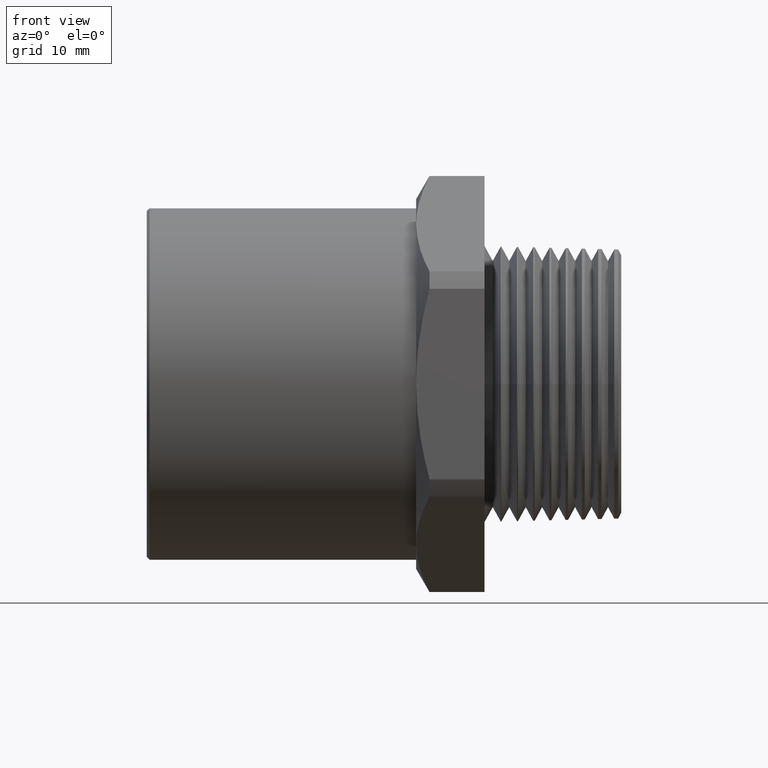
[diagram: clean part render]
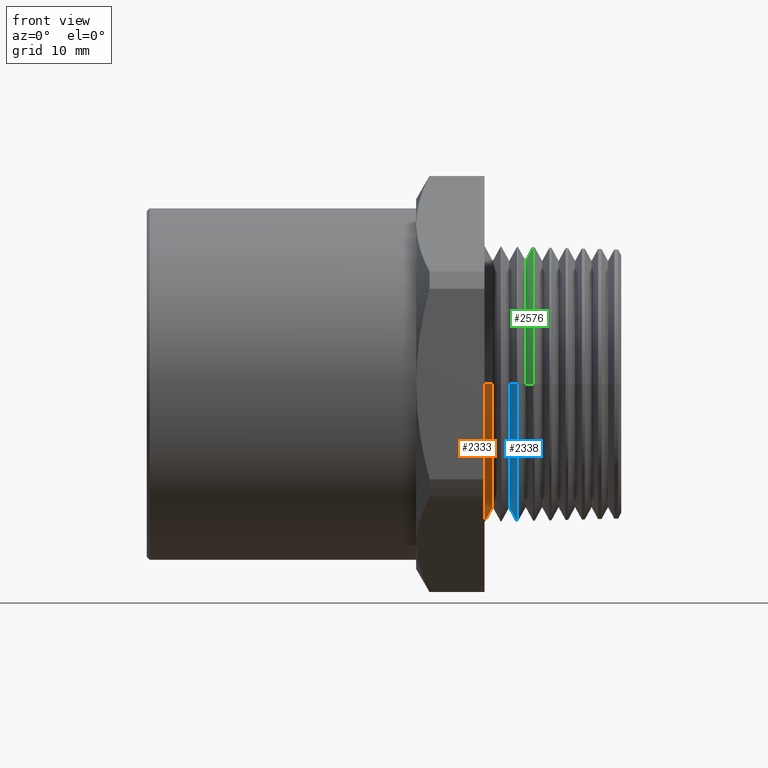
[diagram: same view with three faces highlighted in distinct colors, each labeled with its STEP entity id]
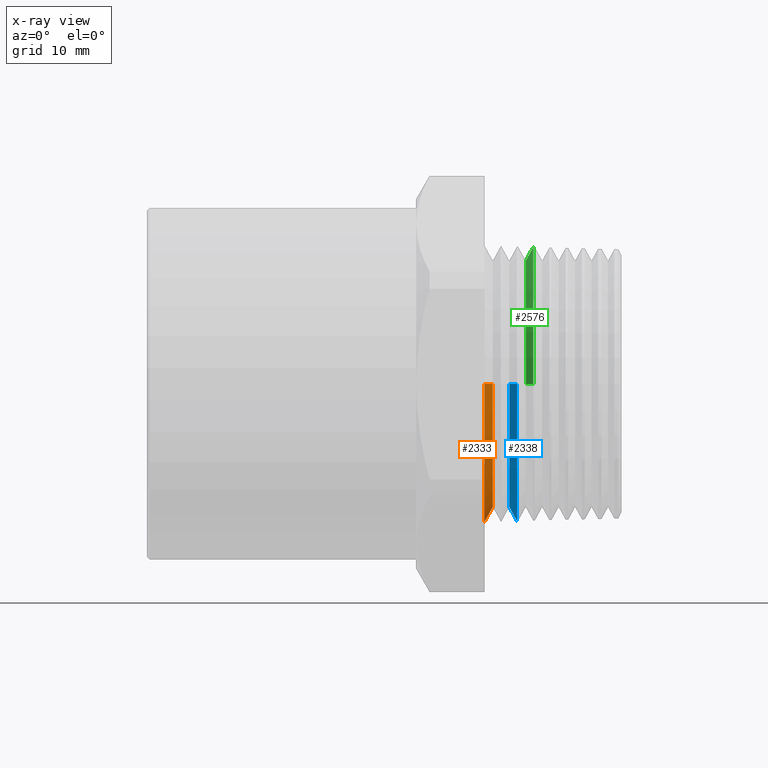
[diagram: x-ray of the same camera — body ghosted, the three highlighted faces saturated]
A machine part, front view with three faces highlighted in distinct colors.
The next image is the same camera in x-ray (body ghosted, the three faces saturated) — at least one of them is partly hidden behind the body in this view.
Their STEP definitions:

[orange] entity #2333 — the highlighted conical surface has half-angle 60 deg.
#439 = EDGE_CURVE ( 'NONE', #2290, #2350, #1412, .T. ) ;
#1408 = DIRECTION ( 'NONE',  ( 0.0000000000000000000, 1.000000000000000000, 0.0000000000000000000 ) ) ;
#1409 = DIRECTION ( 'NONE',  ( 1.000000000000000000, -3.789761643835506200E-017, 0.0000000000000000000 ) ) ;
#1410 = CARTESIAN_POINT ( 'NONE',  ( -0.5100000000000000100, -3.843595286302911400E-017, 0.0000000000000000000 ) ) ;
#1411 = AXIS2_PLACEMENT_3D ( 'NONE', #1410, #1409, #1408 ) ;
#1412 = CIRCLE ( 'NONE', #1411, 0.5150000000000001200 ) ;
#1462 = CARTESIAN_POINT ( 'NONE',  ( -0.4791998063887228400, 0.4616524997823099300, 5.980271788688335600E-017 ) ) ;
#1463 = CARTESIAN_POINT ( 'NONE',  ( -0.4791998063887228400, -0.4616524997823100400, 0.0000000000000000000 ) ) ;
#1554 = DIRECTION ( 'NONE',  ( -0.5000000000000023300, -0.8660254037844371500, 0.0000000000000000000 ) ) ;
#1555 = VECTOR ( 'NONE', #1554, 39.37007874015748900 ) ;
#1556 = CARTESIAN_POINT ( 'NONE',  ( -0.5100000000000000100, -0.5150000000000001200, 0.0000000000000000000 ) ) ;
#1557 = LINE ( 'NONE', #1556, #1555 ) ;
#1573 = DIRECTION ( 'NONE',  ( -1.000000000000000000, 3.789761643835506200E-017, 0.0000000000000000000 ) ) ;
#1574 = CARTESIAN_POINT ( 'NONE',  ( -0.5100000000000000100, -3.843595286302911400E-017, 0.0000000000000000000 ) ) ;
#1575 = AXIS2_PLACEMENT_3D ( 'NONE', #1574, #1573, #1634 ) ;
#1576 = CONICAL_SURFACE ( 'NONE', #1575, 0.5150000000000001200, 1.047197551196595000 ) ;
#1577 = FACE_OUTER_BOUND ( 'NONE', #2330, .T. ) ;
#1578 = DIRECTION ( 'NONE',  ( 0.0000000000000000000, 1.000000000000000000, 0.0000000000000000000 ) ) ;
#1579 = DIRECTION ( 'NONE',  ( 1.000000000000000000, -3.789761643835506200E-017, 0.0000000000000000000 ) ) ;
#1580 = AXIS2_PLACEMENT_3D ( 'NONE', #1585, #1579, #1578 ) ;
#1581 = CIRCLE ( 'NONE', #1580, 0.4616524997823099900 ) ;
#1585 = CARTESIAN_POINT ( 'NONE',  ( -0.4791998063887228400, -3.960320678673636900E-017, 0.0000000000000000000 ) ) ;
#1601 = CARTESIAN_POINT ( 'NONE',  ( -0.5100000000000000100, -0.5150000000000001200, 0.0000000000000000000 ) ) ;
#1634 = DIRECTION ( 'NONE',  ( 0.0000000000000000000, -1.000000000000000000, 0.0000000000000000000 ) ) ;
#1663 = CARTESIAN_POINT ( 'NONE',  ( -0.5100000000000000100, 0.5150000000000000100, 6.306931015608869800E-017 ) ) ;
#1728 = DIRECTION ( 'NONE',  ( -0.5000000000000023300, 0.8660254037844371500, 1.060575238724905100E-016 ) ) ;
#1729 = VECTOR ( 'NONE', #1728, 39.37007874015748900 ) ;
#1730 = CARTESIAN_POINT ( 'NONE',  ( -0.5100000000000000100, 0.5150000000000000100, 6.306931015608871100E-017 ) ) ;
#1731 = LINE ( 'NONE', #1730, #1729 ) ;
#2231 = VERTEX_POINT ( 'NONE', #1463 ) ;
#2232 = VERTEX_POINT ( 'NONE', #1462 ) ;
#2276 = EDGE_CURVE ( 'NONE', #2231, #2290, #1557, .T. ) ;
#2290 = VERTEX_POINT ( 'NONE', #1601 ) ;
#2330 = EDGE_LOOP ( 'NONE', ( #2335, #2331, #2334, #2336 ) ) ;
#2331 = ORIENTED_EDGE ( 'NONE', *, *, #2332, .F. ) ;
#2332 = EDGE_CURVE ( 'NONE', #2231, #2232, #1581, .T. ) ;
#2333 = ADVANCED_FACE ( 'NONE', ( #1577 ), #1576, .T. ) ;
#2334 = ORIENTED_EDGE ( 'NONE', *, *, #2276, .T. ) ;
#2335 = ORIENTED_EDGE ( 'NONE', *, *, #2391, .F. ) ;
#2336 = ORIENTED_EDGE ( 'NONE', *, *, #439, .T. ) ;
#2350 = VERTEX_POINT ( 'NONE', #1663 ) ;
#2391 = EDGE_CURVE ( 'NONE', #2232, #2350, #1731, .T. ) ;

[blue] entity #2338 — the highlighted conical surface has half-angle 60 deg.
#2 = EDGE_CURVE ( 'NONE', #2552, #2677, #502, .T. ) ;
#498 = DIRECTION ( 'NONE',  ( 0.0000000000000000000, 1.000000000000000000, 0.0000000000000000000 ) ) ;
#499 = DIRECTION ( 'NONE',  ( 1.000000000000000000, -3.789761643835506200E-017, 0.0000000000000000000 ) ) ;
#500 = CARTESIAN_POINT ( 'NONE',  ( -0.3888033467538200000, 0.0000000000000000000, 0.0000000000000000000 ) ) ;
#501 = AXIS2_PLACEMENT_3D ( 'NONE', #500, #499, #498 ) ;
#502 = CIRCLE ( 'NONE', #501, 0.5118263539436476200 ) ;
#1607 = DIRECTION ( 'NONE',  ( 0.0000000000000000000, 1.000000000000000000, 0.0000000000000000000 ) ) ;
#1608 = DIRECTION ( 'NONE',  ( 1.000000000000000000, -3.789761643835506200E-017, 0.0000000000000000000 ) ) ;
#1609 = CARTESIAN_POINT ( 'NONE',  ( -0.4177712349601513900, -4.193120322509246200E-017, 0.0000000000000000000 ) ) ;
#1610 = AXIS2_PLACEMENT_3D ( 'NONE', #1609, #1608, #1607 ) ;
#1611 = CIRCLE ( 'NONE', #1610, 0.4616524997823099900 ) ;
#1622 = DIRECTION ( 'NONE',  ( 0.0000000000000000000, 1.000000000000000000, 0.0000000000000000000 ) ) ;
#1623 = DIRECTION ( 'NONE',  ( 1.000000000000000000, -3.789761643835506200E-017, 0.0000000000000000000 ) ) ;
#1624 = CARTESIAN_POINT ( 'NONE',  ( -0.4177712349601513900, -4.193120322509246200E-017, 0.0000000000000000000 ) ) ;
#1625 = AXIS2_PLACEMENT_3D ( 'NONE', #1624, #1623, #1622 ) ;
#1627 = CONICAL_SURFACE ( 'NONE', #1625, 0.4616524997823099900, 1.047197551196604100 ) ;
#1628 = FACE_OUTER_BOUND ( 'NONE', #2327, .T. ) ;
#1829 = DIRECTION ( 'NONE',  ( 0.4999999999999945600, 0.8660254037844418200, 0.0000000000000000000 ) ) ;
#1830 = VECTOR ( 'NONE', #1829, 39.37007874015748100 ) ;
#1831 = CARTESIAN_POINT ( 'NONE',  ( -0.4177712349601513900, 0.4616524997823099300, 0.0000000000000000000 ) ) ;
#1832 = LINE ( 'NONE', #1831, #1830 ) ;
#1833 = CARTESIAN_POINT ( 'NONE',  ( -0.4177712349601513900, 0.4616524997823099300, 5.970270979709196500E-017 ) ) ;
#1890 = DIRECTION ( 'NONE',  ( 0.4999999999999945000, -0.8660254037844419300, 1.060575238724910900E-016 ) ) ;
#1891 = VECTOR ( 'NONE', #1890, 39.37007874015748900 ) ;
#1892 = CARTESIAN_POINT ( 'NONE',  ( -0.4177712349601513900, -0.4616524997823100400, 5.653612561767801300E-017 ) ) ;
#1893 = LINE ( 'NONE', #1892, #1891 ) ;
#1923 = CARTESIAN_POINT ( 'NONE',  ( -0.3888033467538200000, 0.5118263539436519500, 0.0000000000000000000 ) ) ;
#1930 = CARTESIAN_POINT ( 'NONE',  ( -0.4177712349601513900, -0.4616524997823100400, 0.0000000000000000000 ) ) ;
#1931 = CARTESIAN_POINT ( 'NONE',  ( -0.3888033467538200000, -0.5118263539436520600, 6.268065060763536800E-017 ) ) ;
#2051 = CARTESIAN_POINT ( 'NONE',  ( -0.3888033467538200000, 0.0000000000000000000, 0.0000000000000000000 ) ) ;
#2106 = DIRECTION ( 'NONE',  ( 0.0000000000000000000, 1.000000000000000000, 0.0000000000000000000 ) ) ;
#2107 = DIRECTION ( 'NONE',  ( 1.000000000000000000, -3.789761643835506200E-017, 0.0000000000000000000 ) ) ;
#2108 = AXIS2_PLACEMENT_3D ( 'NONE', #2051, #2107, #2106 ) ;
#2109 = CIRCLE ( 'NONE', #2108, 0.5118263539436476200 ) ;
#2171 = CARTESIAN_POINT ( 'NONE',  ( -0.3888033467538200000, 6.268065060763482600E-017, -0.5118263539436476200 ) ) ;
#2327 = EDGE_LOOP ( 'NONE', ( #2329, #2356, #2371, #2383, #2364 ) ) ;
#2329 = ORIENTED_EDGE ( 'NONE', *, *, #2543, .F. ) ;
#2338 = ADVANCED_FACE ( 'NONE', ( #1628 ), #1627, .T. ) ;
#2346 = EDGE_CURVE ( 'NONE', #2553, #2509, #1611, .T. ) ;
#2356 = ORIENTED_EDGE ( 'NONE', *, *, #2346, .T. ) ;
#2364 = ORIENTED_EDGE ( 'NONE', *, *, #2, .F. ) ;
#2371 = ORIENTED_EDGE ( 'NONE', *, *, #2515, .T. ) ;
#2383 = ORIENTED_EDGE ( 'NONE', *, *, #2629, .F. ) ;
#2509 = VERTEX_POINT ( 'NONE', #1833 ) ;
#2515 = EDGE_CURVE ( 'NONE', #2509, #2557, #1832, .T. ) ;
#2543 = EDGE_CURVE ( 'NONE', #2553, #2552, #1893, .T. ) ;
#2552 = VERTEX_POINT ( 'NONE', #1931 ) ;
#2553 = VERTEX_POINT ( 'NONE', #1930 ) ;
#2557 = VERTEX_POINT ( 'NONE', #1923 ) ;
#2629 = EDGE_CURVE ( 'NONE', #2677, #2557, #2109, .T. ) ;
#2677 = VERTEX_POINT ( 'NONE', #2171 ) ;

[green] entity #2576 — the highlighted conical surface has half-angle 60 deg.
#1749 = DIRECTION ( 'NONE',  ( 0.0000000000000000000, 1.000000000000000000, 0.0000000000000000000 ) ) ;
#1750 = DIRECTION ( 'NONE',  ( 1.000000000000000000, -3.789761643835506200E-017, 0.0000000000000000000 ) ) ;
#1751 = CARTESIAN_POINT ( 'NONE',  ( -0.3282896485768899100, 0.0000000000000000000, 0.0000000000000000000 ) ) ;
#1752 = AXIS2_PLACEMENT_3D ( 'NONE', #1751, #1750, #1749 ) ;
#1753 = CIRCLE ( 'NONE', #1752, 0.5102417469893250100 ) ;
#1754 = CARTESIAN_POINT ( 'NONE',  ( -0.3282896485768899100, 0.5102417469893234500, 0.0000000000000000000 ) ) ;
#1756 = DIRECTION ( 'NONE',  ( 0.0000000000000000000, 1.000000000000000000, 0.0000000000000000000 ) ) ;
#1757 = DIRECTION ( 'NONE',  ( 1.000000000000000000, -3.789761643835506200E-017, 0.0000000000000000000 ) ) ;
#1758 = CARTESIAN_POINT ( 'NONE',  ( -0.3282896485768899100, 0.0000000000000000000, 0.0000000000000000000 ) ) ;
#1759 = AXIS2_PLACEMENT_3D ( 'NONE', #1758, #1757, #1756 ) ;
#1760 = CIRCLE ( 'NONE', #1759, 0.5102417469893250100 ) ;
#1794 = DIRECTION ( 'NONE',  ( 0.0000000000000000000, 1.000000000000000000, 0.0000000000000000000 ) ) ;
#1795 = DIRECTION ( 'NONE',  ( 1.000000000000000000, -3.789761643835506200E-017, 0.0000000000000000000 ) ) ;
#1796 = CARTESIAN_POINT ( 'NONE',  ( -0.3563426635315800100, -4.425919966344856700E-017, 0.0000000000000000000 ) ) ;
#1797 = AXIS2_PLACEMENT_3D ( 'NONE', #1796, #1795, #1794 ) ;
#1798 = CIRCLE ( 'NONE', #1797, 0.4616524997823099900 ) ;
#1908 = DIRECTION ( 'NONE',  ( 0.4999999999999945000, -0.8660254037844419300, 1.060575238724910900E-016 ) ) ;
#1909 = VECTOR ( 'NONE', #1908, 39.37007874015748900 ) ;
#1910 = CARTESIAN_POINT ( 'NONE',  ( -0.3563426635315800100, -0.4616524997823100400, 5.653612561767801300E-017 ) ) ;
#1911 = LINE ( 'NONE', #1910, #1909 ) ;
#1912 = CARTESIAN_POINT ( 'NONE',  ( -0.3563426635315800100, 0.4616524997823099300, 5.960270170730056300E-017 ) ) ;
#1929 = CARTESIAN_POINT ( 'NONE',  ( -0.3282896485768899100, -0.5102417469893235600, 6.248659222418286100E-017 ) ) ;
#1997 = DIRECTION ( 'NONE',  ( 0.0000000000000000000, 1.000000000000000000, 0.0000000000000000000 ) ) ;
#1998 = DIRECTION ( 'NONE',  ( 1.000000000000000000, -3.789761643835506200E-017, 0.0000000000000000000 ) ) ;
#1999 = CARTESIAN_POINT ( 'NONE',  ( -0.3563426635315800100, -4.425919966344856700E-017, 0.0000000000000000000 ) ) ;
#2000 = AXIS2_PLACEMENT_3D ( 'NONE', #1999, #1998, #1997 ) ;
#2001 = CONICAL_SURFACE ( 'NONE', #2000, 0.4616524997823099900, 1.047197551196604100 ) ;
#2002 = FACE_OUTER_BOUND ( 'NONE', #2597, .T. ) ;
#2030 = CARTESIAN_POINT ( 'NONE',  ( -0.3282896485768899100, 0.0000000000000000000, 0.5102417469893251200 ) ) ;
#2031 = CARTESIAN_POINT ( 'NONE',  ( -0.3563426635315800100, -0.4616524997823100400, 0.0000000000000000000 ) ) ;
#2102 = DIRECTION ( 'NONE',  ( 0.4999999999999945600, 0.8660254037844418200, 0.0000000000000000000 ) ) ;
#2103 = VECTOR ( 'NONE', #2102, 39.37007874015748100 ) ;
#2104 = CARTESIAN_POINT ( 'NONE',  ( -0.3563426635315800100, 0.4616524997823099300, 0.0000000000000000000 ) ) ;
#2105 = LINE ( 'NONE', #2104, #2103 ) ;
#2423 = EDGE_CURVE ( 'NONE', #2426, #2598, #1760, .T. ) ;
#2426 = VERTEX_POINT ( 'NONE', #1754 ) ;
#2431 = ORIENTED_EDGE ( 'NONE', *, *, #2432, .F. ) ;
#2432 = EDGE_CURVE ( 'NONE', #2598, #2554, #1753, .T. ) ;
#2491 = ORIENTED_EDGE ( 'NONE', *, *, #2535, .T. ) ;
#2492 = EDGE_CURVE ( 'NONE', #2534, #2593, #1798, .T. ) ;
#2534 = VERTEX_POINT ( 'NONE', #1912 ) ;
#2535 = EDGE_CURVE ( 'NONE', #2593, #2554, #1911, .T. ) ;
#2554 = VERTEX_POINT ( 'NONE', #1929 ) ;
#2567 = ORIENTED_EDGE ( 'NONE', *, *, #2423, .F. ) ;
#2576 = ADVANCED_FACE ( 'NONE', ( #2002 ), #2001, .T. ) ;
#2588 = ORIENTED_EDGE ( 'NONE', *, *, #2492, .T. ) ;
#2593 = VERTEX_POINT ( 'NONE', #2031 ) ;
#2597 = EDGE_LOOP ( 'NONE', ( #2588, #2491, #2431, #2567, #2624 ) ) ;
#2598 = VERTEX_POINT ( 'NONE', #2030 ) ;
#2624 = ORIENTED_EDGE ( 'NONE', *, *, #2631, .F. ) ;
#2631 = EDGE_CURVE ( 'NONE', #2534, #2426, #2105, .T. ) ;